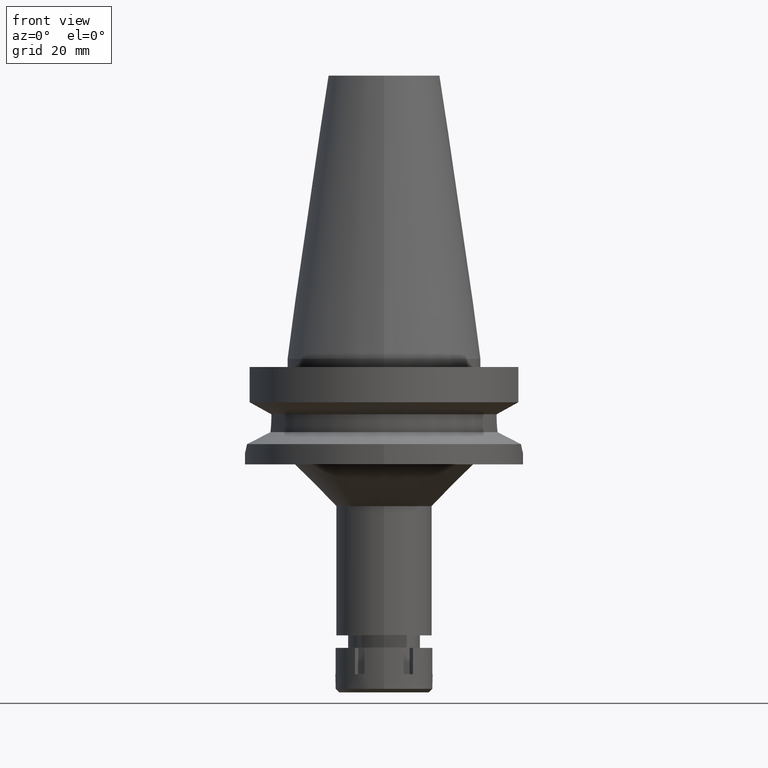
[diagram: clean part render]
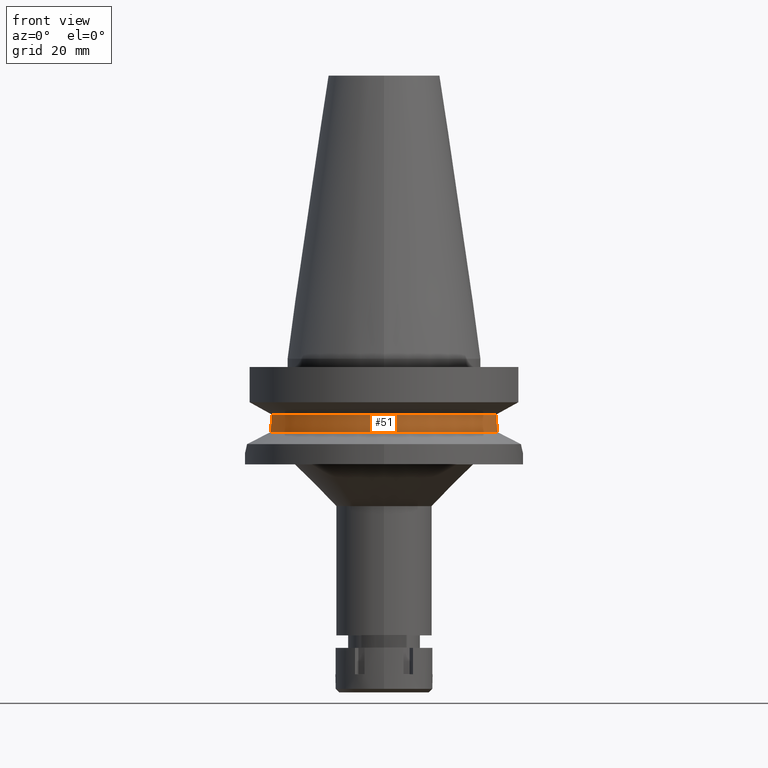
[diagram: same view with one face highlighted and labeled with its STEP entity id]
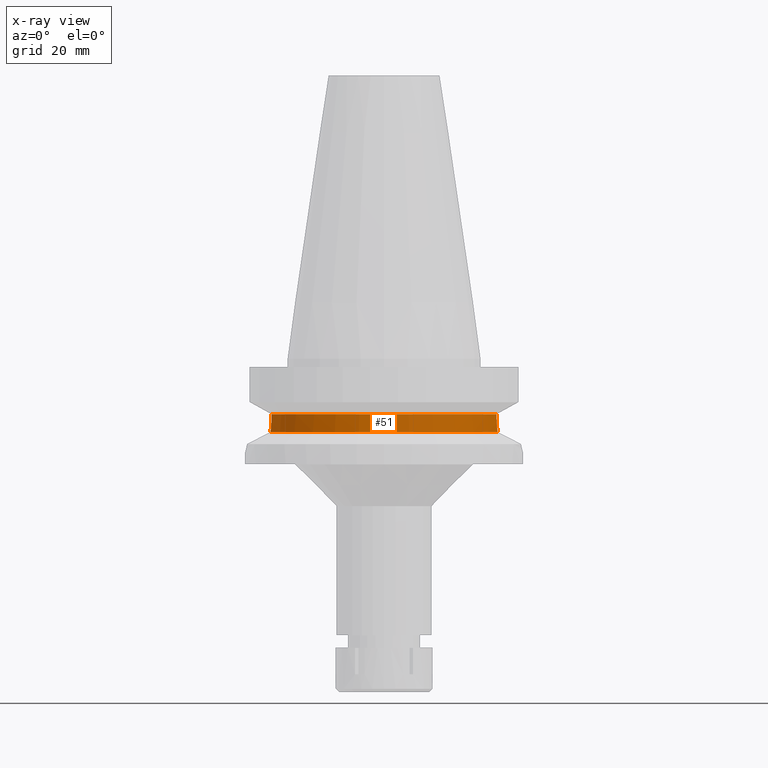
[diagram: x-ray of the same camera — body ghosted, the highlighted face saturated]
A machine part, front view. The second image highlights one B-rep face of the part: STEP entity #51.
The next image is the same camera in x-ray: the body ghosted, the highlighted face saturated — about 0% of this face is hidden behind the body in this view.
In plain terms, the highlighted cylindrical surface (partial cylindrical patch) has radius 42.5 mm, axis along (0, 0, -1).
Its self-contained STEP definition (entity closure, byte-faithful):
#51 = ADVANCED_FACE ( 'NONE', ( #2773 ), #3056, .T. ) ;
#78 = VERTEX_POINT ( 'NONE', #712 ) ;
#190 = CARTESIAN_POINT ( 'NONE',  ( 40.51083188481999997, -12.84999999999999964, -21.14999999999999858 ) ) ;
#227 = DIRECTION ( 'NONE',  ( 0.9531960443486575674, -0.3023529411764863672, 0.0000000000000000000 ) ) ;
#251 = CARTESIAN_POINT ( 'NONE',  ( 40.51083188481999997, -12.84999999999999609, -21.59154171183184800 ) ) ;
#342 = CARTESIAN_POINT ( 'NONE',  ( -40.51083297799000604, -12.84999655368999960, -19.99284570270000216 ) ) ;
#416 = AXIS2_PLACEMENT_3D ( 'NONE', #1678, #1129, #3363 ) ;
#455 = DIRECTION ( 'NONE',  ( 0.0000000000000000000, 0.0000000000000000000, -1.000000000000000000 ) ) ;
#489 = CARTESIAN_POINT ( 'NONE',  ( 40.56599673094050473, -12.67509433839779120, -23.26596311455569932 ) ) ;
#500 = CARTESIAN_POINT ( 'NONE',  ( 40.59188398425018818, -12.59182459259147002, -23.71305796896682594 ) ) ;
#712 = CARTESIAN_POINT ( 'NONE',  ( 40.51083188481999997, -12.84999999999999964, -19.99281925464999787 ) ) ;
#741 = CARTESIAN_POINT ( 'NONE',  ( 40.59544671389546977, -12.58032818125506580, -23.76890350620163517 ) ) ;
#754 = CIRCLE ( 'NONE', #3364, 42.50000000000002132 ) ;
#763 = CARTESIAN_POINT ( 'NONE',  ( 40.54025313608426018, -12.75731810731625337, -22.70684014861359756 ) ) ;
#808 = CARTESIAN_POINT ( 'NONE',  ( -40.51083188481999997, -12.84999999999999964, -21.14999999999999858 ) ) ;
#825 = VECTOR ( 'NONE', #2041, 1000.000000000000000 ) ;
#890 = CARTESIAN_POINT ( 'NONE',  ( -40.63719938804874943, -12.44499676301189162, -24.35261212848416079 ) ) ;
#896 = LINE ( 'NONE', #2862, #825 ) ;
#903 = CARTESIAN_POINT ( 'NONE',  ( -40.61156896389279325, -12.52821669071489552, -24.00856318994577876 ) ) ;
#1129 = DIRECTION ( 'NONE',  ( 0.0000000000000000000, 0.0000000000000000000, 1.000000000000000000 ) ) ;
#1299 = CARTESIAN_POINT ( 'NONE',  ( 40.54944727710435615, -12.72806419699665526, -22.93049076237651107 ) ) ;
#1308 = VERTEX_POINT ( 'NONE', #2836 ) ;
#1322 = CARTESIAN_POINT ( 'NONE',  ( -40.51083188481999997, -12.84999999999999964, -21.14999999999999858 ) ) ;
#1411 = CIRCLE ( 'NONE', #416, 42.50000000000000000 ) ;
#1452 = AXIS2_PLACEMENT_3D ( 'NONE', #2997, #455, #1929 ) ;
#1506 = ORIENTED_EDGE ( 'NONE', *, *, #3484, .F. ) ;
#1583 = CARTESIAN_POINT ( 'NONE',  ( -40.66327695313978552, -12.35977177933932225, -24.67238797837626052 ) ) ;
#1601 = CARTESIAN_POINT ( 'NONE',  ( 40.85052569294000335, -11.72538061688000077, -26.40718074535000426 ) ) ;
#1655 = CARTESIAN_POINT ( 'NONE',  ( 40.85052569294000335, -11.72538061688000077, -26.40718074535000426 ) ) ;
#1678 = CARTESIAN_POINT ( 'NONE',  ( 0.0000000000000000000, 0.0000000000000000000, -26.40718074535000426 ) ) ;
#1774 = CARTESIAN_POINT ( 'NONE',  ( -40.60257095199571609, -12.55731571366193577, -23.87709474182198122 ) ) ;
#1929 = DIRECTION ( 'NONE',  ( 0.0000000000000000000, -1.000000000000000000, 0.0000000000000000000 ) ) ;
#1952 = ORIENTED_EDGE ( 'NONE', *, *, #2754, .F. ) ;
#2013 = EDGE_CURVE ( 'NONE', #78, #3078, #754, .T. ) ;
#2041 = DIRECTION ( 'NONE',  ( -9.447020722333178005E-07, 2.978264535584053915E-06, 0.9999999999951187934 ) ) ;
#2051 = CARTESIAN_POINT ( 'NONE',  ( -40.60613670648186968, -12.54578755583301231, -23.92964714799551729 ) ) ;
#2085 = LINE ( 'NONE', #3221, #3164 ) ;
#2148 = EDGE_LOOP ( 'NONE', ( #3532, #3234, #1506, #1952, #3480, #2984 ) ) ;
#2153 = CARTESIAN_POINT ( 'NONE',  ( 40.57496101843507574, -12.64633755876298693, -23.43369807928904081 ) ) ;
#2160 = CARTESIAN_POINT ( 'NONE',  ( -40.68244601107633684, -12.29666625011165415, -24.88710380518764254 ) ) ;
#2184 = DIRECTION ( 'NONE',  ( 0.0000000000000000000, 0.0000000000000000000, -1.000000000000000000 ) ) ;
#2220 = CARTESIAN_POINT ( 'NONE',  ( 0.0000000000000000000, 1.006319759053999930E-14, -19.99281925464999787 ) ) ;
#2221 = CARTESIAN_POINT ( 'NONE',  ( 40.51083188481999997, -12.84999999999999964, -21.14999999999999858 ) ) ;
#2324 = CARTESIAN_POINT ( 'NONE',  ( -40.62482961095668088, -12.48525133053583147, -24.19329755006814153 ) ) ;
#2340 = B_SPLINE_CURVE_WITH_KNOTS ( 'NONE', 3,
 ( #3267, #3563, #3437, #2160, #1583, #890, #2324, #903, #2051, #1774, #2616, #2478, #3352, #808 ),
 .UNSPECIFIED., .F., .F.,
 ( 4, 2, 2, 1, 1, 2, 2, 4 ),
 ( 0.0000000000000000000, 0.2499999999999908407, 0.3749999999999861222, 0.4374999999999826250, 0.4687499999999819034, 0.4843749999999814593, 0.4999999999999810707, 1.000000000000000000 ),
 .UNSPECIFIED. ) ;
#2369 = EDGE_CURVE ( 'NONE', #1308, #2415, #2340, .T. ) ;
#2386 = DIRECTION ( 'NONE',  ( -9.461172470233040174E-07, -2.982726037709009933E-06, -0.9999999999951040275 ) ) ;
#2415 = VERTEX_POINT ( 'NONE', #1322 ) ;
#2478 = CARTESIAN_POINT ( 'NONE',  ( -40.54025086427707691, -12.75862911298345992, -22.93149008171479508 ) ) ;
#2507 = B_SPLINE_CURVE_WITH_KNOTS ( 'NONE', 3,
 ( #190, #251, #3038, #763, #1299, #489, #2153, #2750, #500, #741, #3344, #3551, #3632, #1655 ),
 .UNSPECIFIED., .F., .F.,
 ( 4, 2, 2, 1, 1, 2, 2, 4 ),
 ( 0.0000000000000000000, 0.2499999999999892308, 0.3749999999999846789, 0.4374999999999822919, 0.4687499999999819589, 0.4843749999999820144, 0.4999999999999820144, 1.000000000000000000 ),
 .UNSPECIFIED. ) ;
#2616 = CARTESIAN_POINT ( 'NONE',  ( -40.60092750940732031, -12.56262654778352506, -23.85254111937892674 ) ) ;
#2750 = CARTESIAN_POINT ( 'NONE',  ( 40.58662608485430923, -12.60878154790535000, -23.62927549513685221 ) ) ;
#2754 = EDGE_CURVE ( 'NONE', #78, #3462, #2085, .T. ) ;
#2773 = FACE_OUTER_BOUND ( 'NONE', #2148, .T. ) ;
#2836 = CARTESIAN_POINT ( 'NONE',  ( -40.85052569294000335, -11.72538061688000077, -26.40718074535000426 ) ) ;
#2862 = CARTESIAN_POINT ( 'NONE',  ( -40.51083188481999997, -12.84999999999999964, -21.14999999999999858 ) ) ;
#2866 = VERTEX_POINT ( 'NONE', #1601 ) ;
#2984 = ORIENTED_EDGE ( 'NONE', *, *, #3181, .F. ) ;
#2997 = CARTESIAN_POINT ( 'NONE',  ( 0.0000000000000000000, 2.602251983507999750E-14, 112.4900000000000091 ) ) ;
#3038 = CARTESIAN_POINT ( 'NONE',  ( 40.51818719763606680, -12.82722225432308960, -22.03686830847411215 ) ) ;
#3056 = CYLINDRICAL_SURFACE ( 'NONE', #1452, 42.50000000000000000 ) ;
#3078 = VERTEX_POINT ( 'NONE', #342 ) ;
#3164 = VECTOR ( 'NONE', #2386, 1000.000000000000227 ) ;
#3181 = EDGE_CURVE ( 'NONE', #2415, #3078, #896, .T. ) ;
#3221 = CARTESIAN_POINT ( 'NONE',  ( 40.51083297961999818, -12.84999654852999917, -19.99284574232000011 ) ) ;
#3234 = ORIENTED_EDGE ( 'NONE', *, *, #3642, .T. ) ;
#3267 = CARTESIAN_POINT ( 'NONE',  ( -40.85052569294000335, -11.72538061688000077, -26.40718074535000426 ) ) ;
#3344 = CARTESIAN_POINT ( 'NONE',  ( 40.59736864107516396, -12.57412283048223856, -23.79851909554432865 ) ) ;
#3352 = CARTESIAN_POINT ( 'NONE',  ( -40.51083188482000708, -12.84999999999998543, -22.03308001794205140 ) ) ;
#3363 = DIRECTION ( 'NONE',  ( 0.0000000000000000000, -1.000000000000000000, 0.0000000000000000000 ) ) ;
#3364 = AXIS2_PLACEMENT_3D ( 'NONE', #2220, #2184, #227 ) ;
#3437 = CARTESIAN_POINT ( 'NONE',  ( -40.74530522851353709, -12.08734613714425876, -25.53455770065779618 ) ) ;
#3462 = VERTEX_POINT ( 'NONE', #2221 ) ;
#3480 = ORIENTED_EDGE ( 'NONE', *, *, #2013, .T. ) ;
#3484 = EDGE_CURVE ( 'NONE', #3462, #2866, #2507, .T. ) ;
#3532 = ORIENTED_EDGE ( 'NONE', *, *, #2369, .F. ) ;
#3551 = CARTESIAN_POINT ( 'NONE',  ( 40.65435955981745764, -12.39001970624487292, -24.66361747048510011 ) ) ;
#3563 = CARTESIAN_POINT ( 'NONE',  ( -40.79434743164174648, -11.92110232362476019, -25.97065181136010992 ) ) ;
#3632 = CARTESIAN_POINT ( 'NONE',  ( 40.73816957792652005, -12.11682261037108965, -25.53412604446967649 ) ) ;
#3642 = EDGE_CURVE ( 'NONE', #1308, #2866, #1411, .T. ) ;